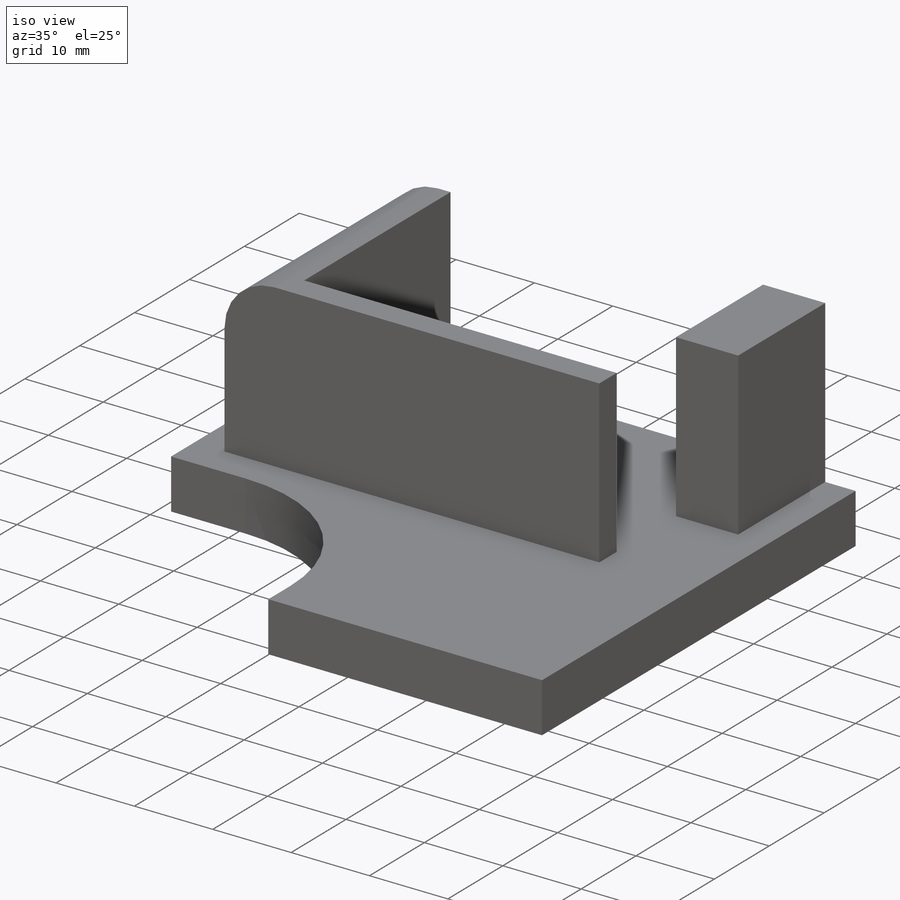
[diagram: iso view]
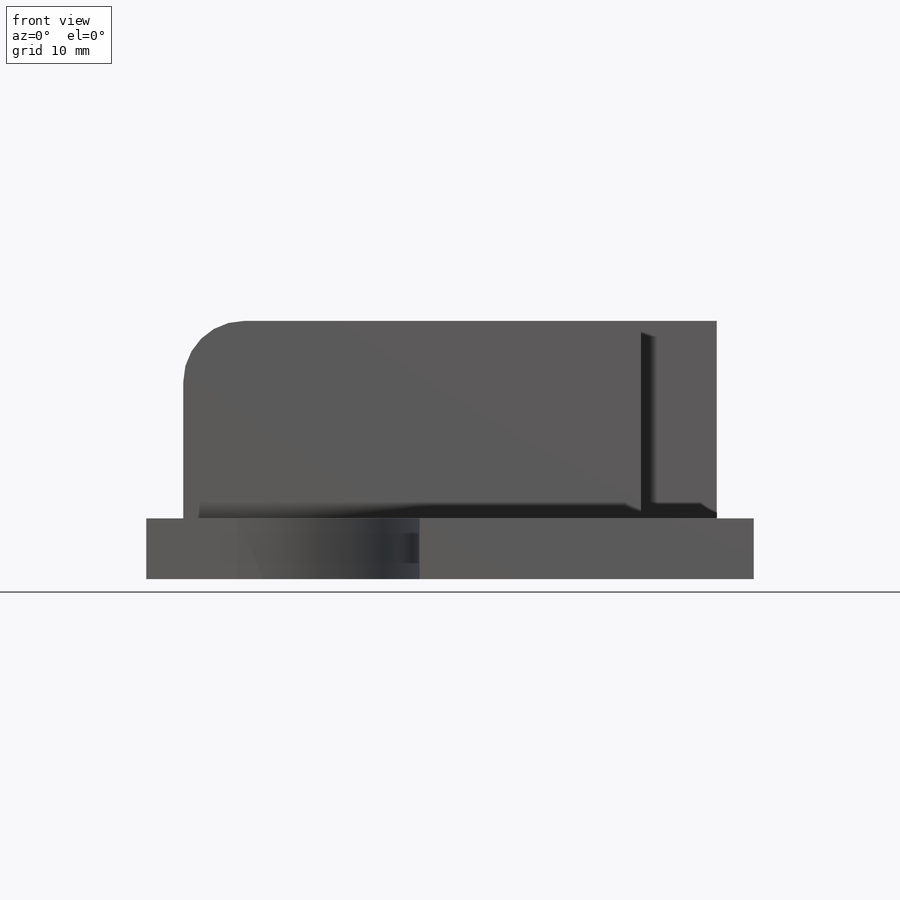
[diagram: front view]
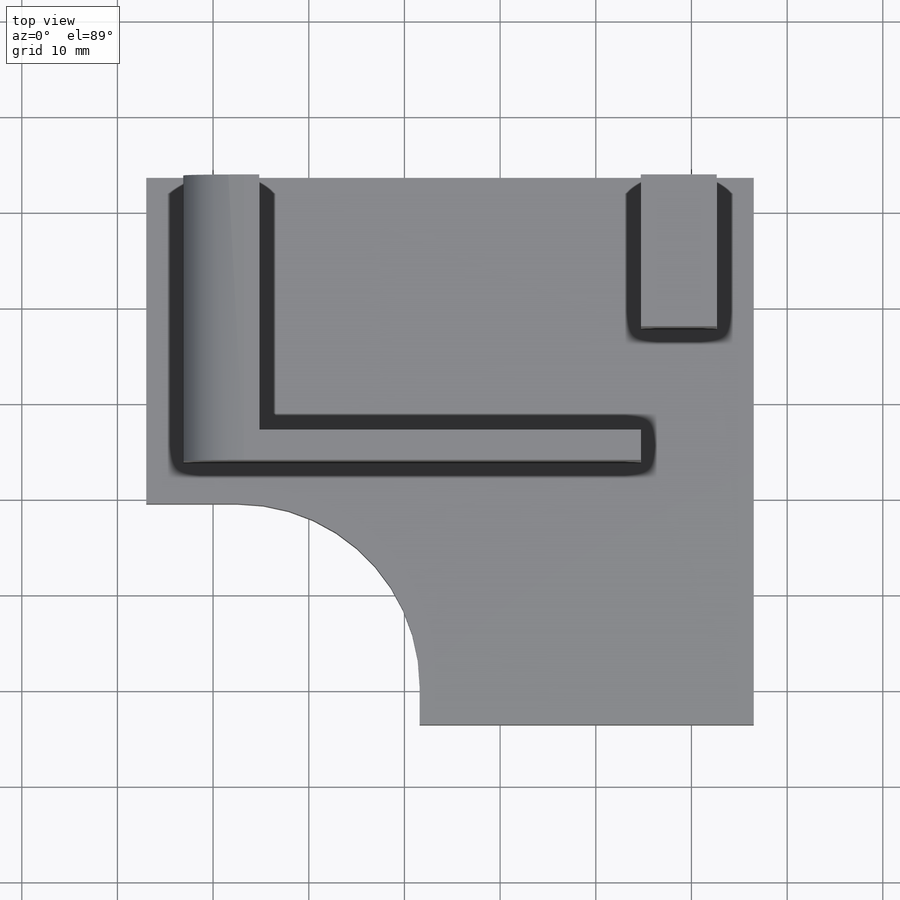
[diagram: top view]
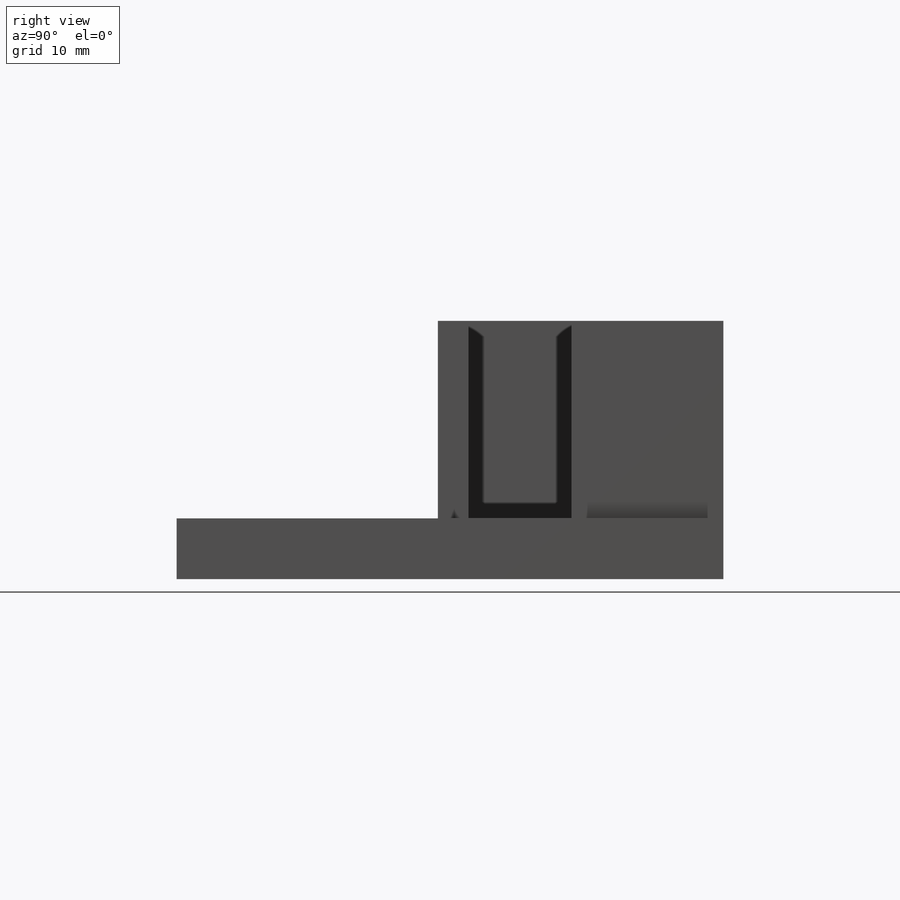
[diagram: right view]
SOLIDWORKS PART (.sldprt)
format: sldprt  version: not decoded by parser v0  size: 236,544 bytes
history: native  units: mm
features: sketch x6, extrude x4, cut_extrude x2, fillet x2, material x1 (+13 scaffold rows collapsed)
feature tree (28):
  scaffold x13  (default folders/planes/origin — collapsed)
  material  "Material <not specified>"
  sketch  "Sketch1"  dims[D1=63.5mm]
  extrude  "Boss-Extrude1"  Depth=3.175mm
  sketch  "Sketch2"  dims[D1=7.9375mm]
  extrude  "Boss-Extrude2"  Depth=20.6375mm
  sketch  "Sketch3"
  cut_extrude  "Cut-Extrude1"  [1 undecoded]
  sketch  "Sketch4"  dims[D1=23.622mm]
  cut_extrude  "Cut-Extrude2"  Depth=12.7mm
  sketch  "Sketch5"  dims[D1=12.0015mm]
  extrude  "Boss-Extrude3"  Depth=3.175mm
  sketch  "Sketch6"  dims[D1=34.925mm]
  extrude  "Boss-Extrude4"  Depth=23.0886mm
  fillet  "Fillet1"  Radius=19.05mm
  fillet  "Fillet2"  Radius=6.35mm
decode coverage: 12 of 14 modeling features carry decoded parameters
note: 1 parameter value undecoded
note: suppression state not decoded; provenance and decode notes live in map.json
